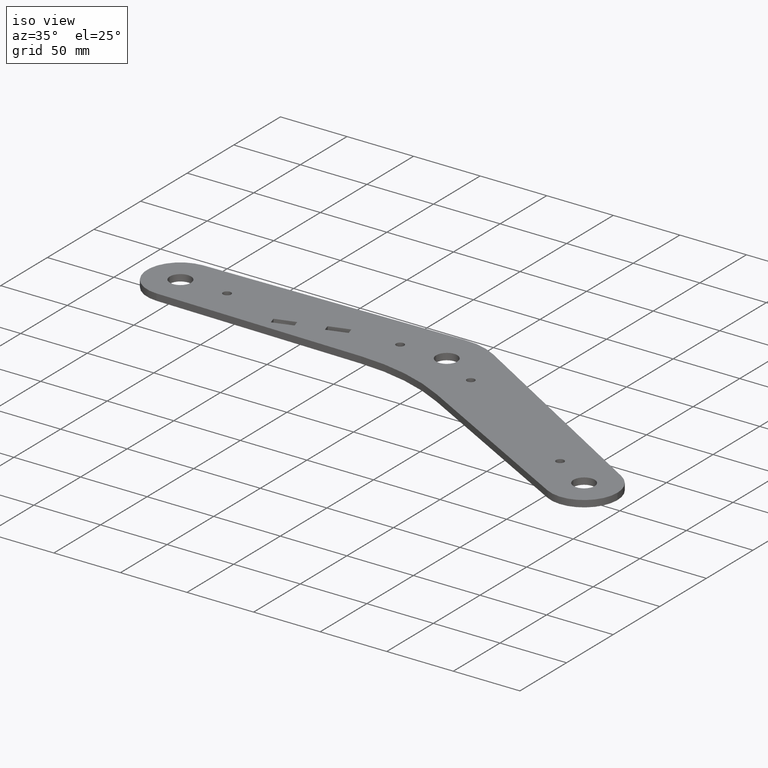
[diagram: clean part render]
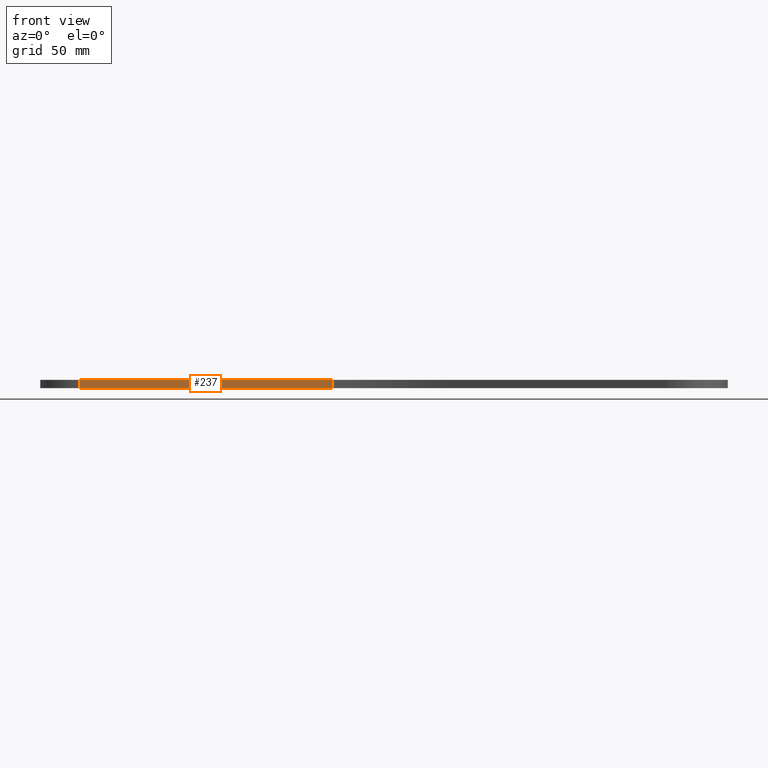
[diagram: tour spotlight — one face highlighted and labeled with its STEP entity id]
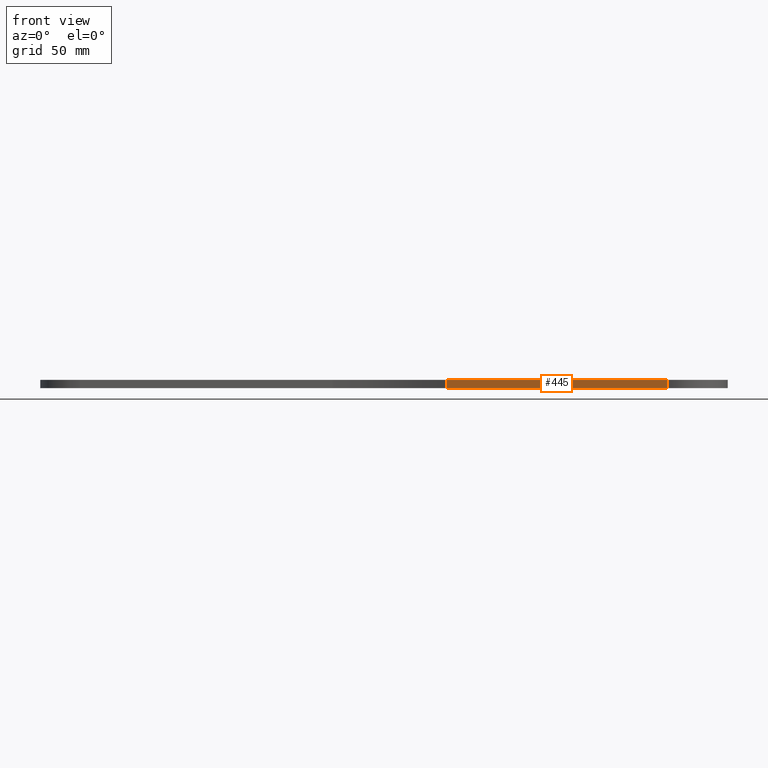
[diagram: tour spotlight — one face highlighted and labeled with its STEP entity id]
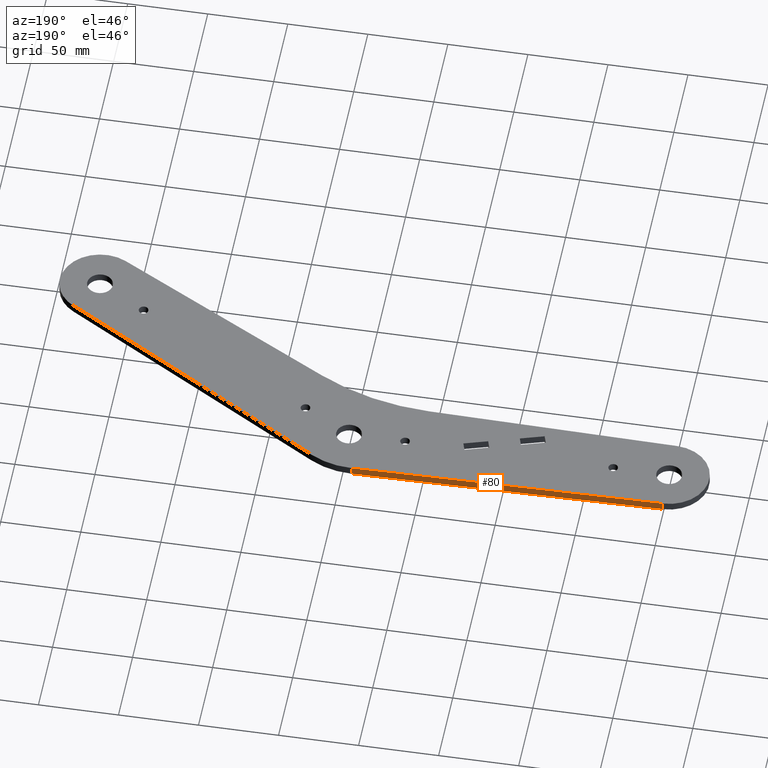
[diagram: tour spotlight — one face highlighted and labeled with its STEP entity id]
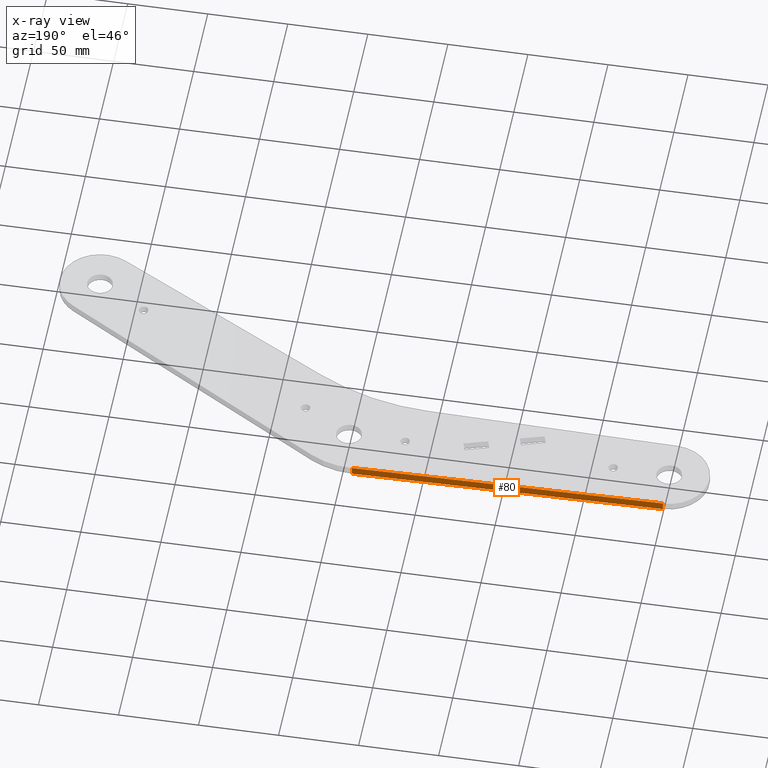
[diagram: x-ray of the same camera — body ghosted, this tour face saturated]
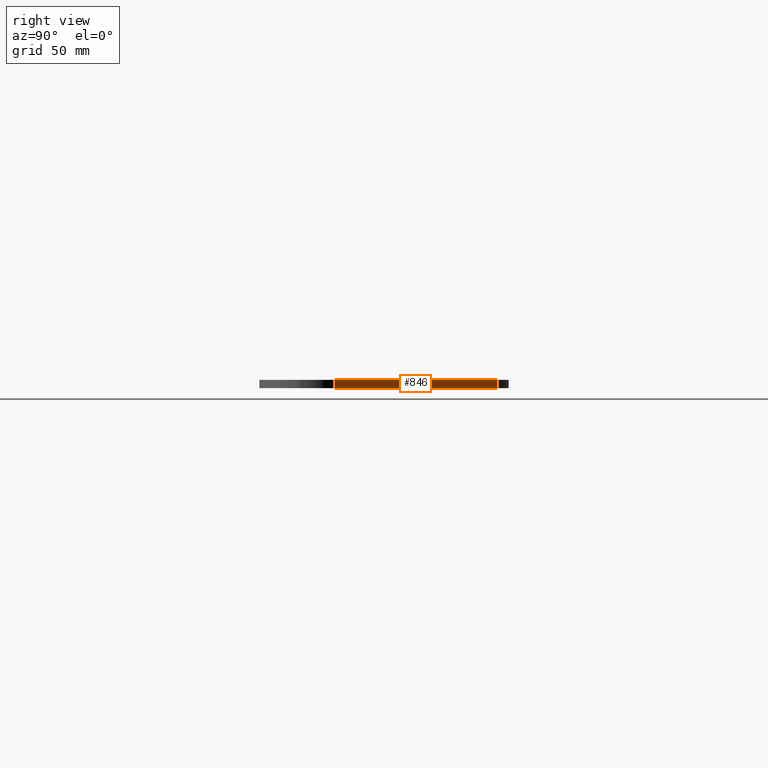
[diagram: tour spotlight — one face highlighted and labeled with its STEP entity id]
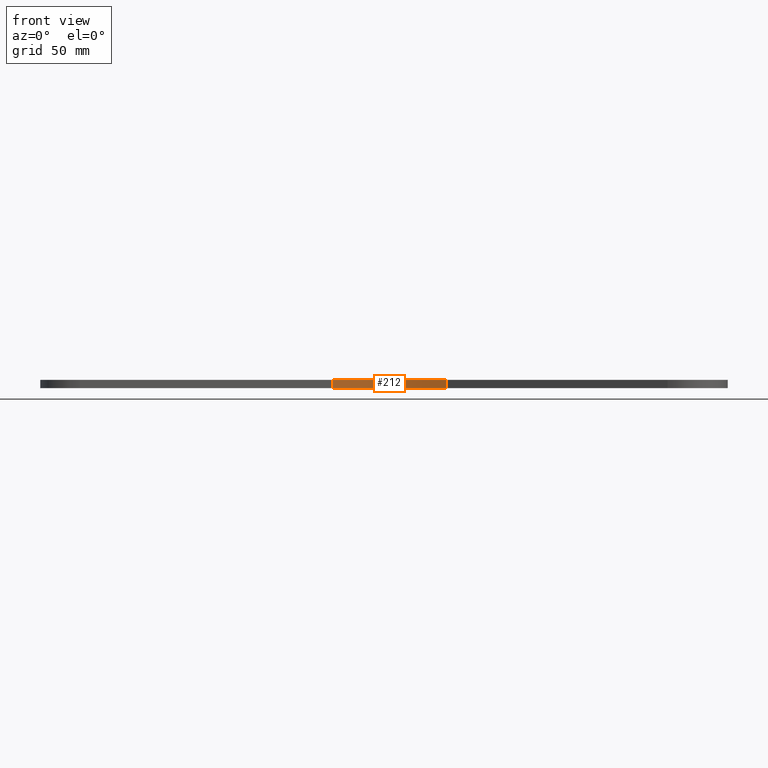
[diagram: tour spotlight — one face highlighted and labeled with its STEP entity id]
A machine part: a face-by-face anatomy tour. The part has 33 B-rep faces; the first image is the clean iso view, then the 5 largest visible faces are spotlighted one at a time (largest first), each with its STEP entity span.

Face 1 — front view, entity #237. In plain terms, the highlighted planar face has unit normal (-0.0175, -0.9998, 0).
Definition (entity closure, byte-faithful):
#4 = CARTESIAN_POINT ( 'NONE',  ( -200.4363101609320950, -24.99619237890977530, -5.000000000000000000 ) ) ;
#21 = VERTEX_POINT ( 'NONE', #950 ) ;
#120 = DIRECTION ( 'NONE',  ( 0.9998476951563911586, -0.01745240643728373023, 0.000000000000000000 ) ) ;
#142 = VERTEX_POINT ( 'NONE', #529 ) ;
#143 = CARTESIAN_POINT ( 'NONE',  ( -200.4363101609320950, -24.99619237890977530, 0.000000000000000000 ) ) ;
#237 = ADVANCED_FACE ( 'NONE', ( #1199 ), #285, .T. ) ;
#285 = PLANE ( 'NONE',  #1106 ) ;
#314 = LINE ( 'NONE', #957, #918 ) ;
#328 = EDGE_CURVE ( 'NONE', #21, #1034, #314, .T. ) ;
#336 = CARTESIAN_POINT ( 'NONE',  ( -200.4363101609320950, -24.99619237890977530, 0.000000000000000000 ) ) ;
#439 = EDGE_CURVE ( 'NONE', #479, #142, #1054, .T. ) ;
#469 = CARTESIAN_POINT ( 'NONE',  ( -200.4363101609320950, -24.99619237890977530, -5.000000000000000000 ) ) ;
#479 = VERTEX_POINT ( 'NONE', #336 ) ;
#498 = VECTOR ( 'NONE', #663, 1000.000000000000000 ) ;
#529 = CARTESIAN_POINT ( 'NONE',  ( -44.99312471194955521, -27.70946327357076555, 0.000000000000000000 ) ) ;
#549 = VECTOR ( 'NONE', #604, 1000.000000000000114 ) ;
#588 = EDGE_CURVE ( 'NONE', #1034, #142, #727, .T. ) ;
#604 = DIRECTION ( 'NONE',  ( 0.9998476951563911586, -0.01745240643728373023, 0.000000000000000000 ) ) ;
#617 = CARTESIAN_POINT ( 'NONE',  ( -44.99312471194955521, -27.70946327357076555, -5.000000000000000000 ) ) ;
#662 = DIRECTION ( 'NONE',  ( 0.9998476951563911586, -0.01745240643728373023, 0.000000000000000000 ) ) ;
#663 = DIRECTION ( 'NONE',  ( 0.000000000000000000, 0.000000000000000000, 1.000000000000000000 ) ) ;
#672 = ORIENTED_EDGE ( 'NONE', *, *, #439, .F. ) ;
#677 = VECTOR ( 'NONE', #1087, 1000.000000000000000 ) ;
#719 = EDGE_CURVE ( 'NONE', #21, #479, #936, .T. ) ;
#727 = LINE ( 'NONE', #1075, #677 ) ;
#755 = ORIENTED_EDGE ( 'NONE', *, *, #588, .T. ) ;
#852 = ORIENTED_EDGE ( 'NONE', *, *, #719, .F. ) ;
#918 = VECTOR ( 'NONE', #120, 1000.000000000000114 ) ;
#919 = DIRECTION ( 'NONE',  ( -0.01745240643728373370, -0.9998476951563912696, 0.000000000000000000 ) ) ;
#936 = LINE ( 'NONE', #4, #498 ) ;
#950 = CARTESIAN_POINT ( 'NONE',  ( -200.4363101609320950, -24.99619237890977530, -5.000000000000000000 ) ) ;
#957 = CARTESIAN_POINT ( 'NONE',  ( -200.4363101609320950, -24.99619237890977530, -5.000000000000000000 ) ) ;
#1034 = VERTEX_POINT ( 'NONE', #617 ) ;
#1045 = ORIENTED_EDGE ( 'NONE', *, *, #328, .T. ) ;
#1054 = LINE ( 'NONE', #143, #549 ) ;
#1075 = CARTESIAN_POINT ( 'NONE',  ( -44.99312471194955521, -27.70946327357076555, -5.000000000000000000 ) ) ;
#1087 = DIRECTION ( 'NONE',  ( 0.000000000000000000, 0.000000000000000000, 1.000000000000000000 ) ) ;
#1106 = AXIS2_PLACEMENT_3D ( 'NONE', #469, #919, #662 ) ;
#1145 = EDGE_LOOP ( 'NONE', ( #672, #852, #1045, #755 ) ) ;
#1199 = FACE_OUTER_BOUND ( 'NONE', #1145, .T. ) ;

Face 2 — front view, entity #445. In plain terms, the highlighted planar face has unit normal (-0.4848, -0.8746, 0).
Definition (entity closure, byte-faithful):
#65 = DIRECTION ( 'NONE',  ( 0.8746197071393919664, -0.4848096202463438309, -0.000000000000000000 ) ) ;
#133 = CARTESIAN_POINT ( 'NONE',  ( 25.11045735940951218, -46.49366147612066413, -5.000000000000000000 ) ) ;
#136 = PLANE ( 'NONE',  #865 ) ;
#165 = VECTOR ( 'NONE', #246, 1000.000000000000000 ) ;
#223 = ORIENTED_EDGE ( 'NONE', *, *, #641, .F. ) ;
#236 = CARTESIAN_POINT ( 'NONE',  ( 161.0848402507290302, -121.8654926784849835, -5.000000000000000000 ) ) ;
#246 = DIRECTION ( 'NONE',  ( 0.000000000000000000, 0.000000000000000000, 1.000000000000000000 ) ) ;
#258 = ORIENTED_EDGE ( 'NONE', *, *, #1019, .F. ) ;
#323 = DIRECTION ( 'NONE',  ( 0.8746197071393919664, -0.4848096202463438309, 0.000000000000000000 ) ) ;
#353 = VERTEX_POINT ( 'NONE', #674 ) ;
#386 = ORIENTED_EDGE ( 'NONE', *, *, #1026, .T. ) ;
#400 = VECTOR ( 'NONE', #527, 1000.000000000000227 ) ;
#413 = CARTESIAN_POINT ( 'NONE',  ( 161.0848402507290302, -121.8654926784849835, -5.000000000000000000 ) ) ;
#444 = CARTESIAN_POINT ( 'NONE',  ( 25.11045735940951218, -46.49366147612066413, -5.000000000000000000 ) ) ;
#445 = ADVANCED_FACE ( 'NONE', ( #966 ), #136, .T. ) ;
#527 = DIRECTION ( 'NONE',  ( 0.8746197071393919664, -0.4848096202463438309, -0.000000000000000000 ) ) ;
#534 = LINE ( 'NONE', #236, #400 ) ;
#540 = CARTESIAN_POINT ( 'NONE',  ( 161.0848402507290302, -121.8654926784849835, 0.000000000000000000 ) ) ;
#579 = VERTEX_POINT ( 'NONE', #1167 ) ;
#641 = EDGE_CURVE ( 'NONE', #921, #353, #1082, .T. ) ;
#674 = CARTESIAN_POINT ( 'NONE',  ( 25.11045735940951218, -46.49366147612066413, 0.000000000000000000 ) ) ;
#789 = DIRECTION ( 'NONE',  ( 0.000000000000000000, 0.000000000000000000, 1.000000000000000000 ) ) ;
#862 = LINE ( 'NONE', #413, #1057 ) ;
#865 = AXIS2_PLACEMENT_3D ( 'NONE', #1160, #962, #323 ) ;
#921 = VERTEX_POINT ( 'NONE', #133 ) ;
#928 = EDGE_CURVE ( 'NONE', #579, #1084, #862, .T. ) ;
#962 = DIRECTION ( 'NONE',  ( -0.4848096202463438864, -0.8746197071393920774, 0.000000000000000000 ) ) ;
#966 = FACE_OUTER_BOUND ( 'NONE', #1077, .T. ) ;
#985 = CARTESIAN_POINT ( 'NONE',  ( 161.0848402507290302, -121.8654926784849835, 0.000000000000000000 ) ) ;
#990 = LINE ( 'NONE', #985, #1192 ) ;
#1019 = EDGE_CURVE ( 'NONE', #353, #1084, #990, .T. ) ;
#1026 = EDGE_CURVE ( 'NONE', #921, #579, #534, .T. ) ;
#1057 = VECTOR ( 'NONE', #789, 1000.000000000000000 ) ;
#1077 = EDGE_LOOP ( 'NONE', ( #258, #223, #386, #1202 ) ) ;
#1082 = LINE ( 'NONE', #444, #165 ) ;
#1084 = VERTEX_POINT ( 'NONE', #540 ) ;
#1160 = CARTESIAN_POINT ( 'NONE',  ( 161.0848402507290302, -121.8654926784849835, -5.000000000000000000 ) ) ;
#1167 = CARTESIAN_POINT ( 'NONE',  ( 161.0848402507290302, -121.8654926784849835, -5.000000000000000000 ) ) ;
#1192 = VECTOR ( 'NONE', #65, 1000.000000000000227 ) ;
#1202 = ORIENTED_EDGE ( 'NONE', *, *, #928, .T. ) ;

Face 3 — auxiliary view, entity #80. An x-ray twin of the same camera follows (body ghosted, this face saturated) — the face is partly hidden behind the body. In plain terms, the highlighted planar face has unit normal (-0.0175, 0.9998, 0).
Definition (entity closure, byte-faithful):
#49 = EDGE_CURVE ( 'NONE', #222, #999, #1064, .T. ) ;
#80 = ADVANCED_FACE ( 'NONE', ( #1155 ), #325, .T. ) ;
#84 = CARTESIAN_POINT ( 'NONE',  ( -200.4363101609320950, 24.99619237890977530, 0.000000000000000000 ) ) ;
#87 = VECTOR ( 'NONE', #1107, 1000.000000000000000 ) ;
#89 = LINE ( 'NONE', #84, #1168 ) ;
#193 = EDGE_CURVE ( 'NONE', #940, #999, #89, .T. ) ;
#222 = VERTEX_POINT ( 'NONE', #1102 ) ;
#252 = DIRECTION ( 'NONE',  ( -0.9998476951563911586, -0.01745240643728353941, 0.000000000000000000 ) ) ;
#260 = DIRECTION ( 'NONE',  ( -0.9998476951563911586, -0.01745240643728353941, -0.000000000000000000 ) ) ;
#296 = AXIS2_PLACEMENT_3D ( 'NONE', #813, #796, #252 ) ;
#325 = PLANE ( 'NONE',  #296 ) ;
#370 = ORIENTED_EDGE ( 'NONE', *, *, #1191, .F. ) ;
#441 = VERTEX_POINT ( 'NONE', #794 ) ;
#466 = ORIENTED_EDGE ( 'NONE', *, *, #49, .T. ) ;
#512 = CARTESIAN_POINT ( 'NONE',  ( -200.4363101609320950, 24.99619237890977530, -5.000000000000000000 ) ) ;
#513 = ORIENTED_EDGE ( 'NONE', *, *, #193, .F. ) ;
#548 = VECTOR ( 'NONE', #1074, 1000.000000000000000 ) ;
#565 = LINE ( 'NONE', #752, #87 ) ;
#603 = EDGE_CURVE ( 'NONE', #441, #222, #824, .T. ) ;
#620 = ORIENTED_EDGE ( 'NONE', *, *, #603, .T. ) ;
#732 = DIRECTION ( 'NONE',  ( -0.9998476951563911586, -0.01745240643728353941, -0.000000000000000000 ) ) ;
#752 = CARTESIAN_POINT ( 'NONE',  ( -6.664043320742175425, 28.37849987789320139, -5.000000000000000000 ) ) ;
#794 = CARTESIAN_POINT ( 'NONE',  ( -6.664043320742175425, 28.37849987789320139, -5.000000000000000000 ) ) ;
#796 = DIRECTION ( 'NONE',  ( -0.01745240643728354288, 0.9998476951563912696, 0.000000000000000000 ) ) ;
#813 = CARTESIAN_POINT ( 'NONE',  ( -200.4363101609320950, 24.99619237890977530, -5.000000000000000000 ) ) ;
#815 = EDGE_LOOP ( 'NONE', ( #513, #370, #620, #466 ) ) ;
#818 = CARTESIAN_POINT ( 'NONE',  ( -200.4363101609320950, 24.99619237890977530, -5.000000000000000000 ) ) ;
#824 = LINE ( 'NONE', #818, #1173 ) ;
#940 = VERTEX_POINT ( 'NONE', #1043 ) ;
#999 = VERTEX_POINT ( 'NONE', #1073 ) ;
#1043 = CARTESIAN_POINT ( 'NONE',  ( -6.664043320742175425, 28.37849987789320139, 0.000000000000000000 ) ) ;
#1064 = LINE ( 'NONE', #512, #548 ) ;
#1073 = CARTESIAN_POINT ( 'NONE',  ( -200.4363101609320950, 24.99619237890977530, 0.000000000000000000 ) ) ;
#1074 = DIRECTION ( 'NONE',  ( 0.000000000000000000, 0.000000000000000000, 1.000000000000000000 ) ) ;
#1102 = CARTESIAN_POINT ( 'NONE',  ( -200.4363101609320950, 24.99619237890977530, -5.000000000000000000 ) ) ;
#1107 = DIRECTION ( 'NONE',  ( 0.000000000000000000, 0.000000000000000000, 1.000000000000000000 ) ) ;
#1155 = FACE_OUTER_BOUND ( 'NONE', #815, .T. ) ;
#1168 = VECTOR ( 'NONE', #260, 1000.000000000000114 ) ;
#1173 = VECTOR ( 'NONE', #732, 1000.000000000000114 ) ;
#1191 = EDGE_CURVE ( 'NONE', #441, #940, #565, .T. ) ;

Face 4 — right view, entity #846. In plain terms, the highlighted planar face has unit normal (0.515, 0.8572, -0).
Definition (entity closure, byte-faithful):
#10 = LINE ( 'NONE', #873, #956 ) ;
#39 = VERTEX_POINT ( 'NONE', #798 ) ;
#43 = LINE ( 'NONE', #1081, #969 ) ;
#79 = DIRECTION ( 'NONE',  ( 0.000000000000000000, 0.000000000000000000, 1.000000000000000000 ) ) ;
#86 = VECTOR ( 'NONE', #79, 1000.000000000000000 ) ;
#90 = FACE_OUTER_BOUND ( 'NONE', #1131, .T. ) ;
#139 = EDGE_CURVE ( 'NONE', #1137, #1151, #43, .T. ) ;
#203 = DIRECTION ( 'NONE',  ( 0.5150380749100493816, 0.8571673007021152202, -0.000000000000000000 ) ) ;
#264 = ORIENTED_EDGE ( 'NONE', *, *, #288, .T. ) ;
#288 = EDGE_CURVE ( 'NONE', #39, #777, #10, .T. ) ;
#355 = CARTESIAN_POINT ( 'NONE',  ( 19.96048074662445160, 21.24448015517938160, -5.000000000000000000 ) ) ;
#453 = DIRECTION ( 'NONE',  ( 0.000000000000000000, 0.000000000000000000, 1.000000000000000000 ) ) ;
#456 = AXIS2_PLACEMENT_3D ( 'NONE', #1030, #203, #884 ) ;
#482 = VECTOR ( 'NONE', #453, 1000.000000000000000 ) ;
#484 = DIRECTION ( 'NONE',  ( -0.8571673007021152202, 0.5150380749100493816, 0.000000000000000000 ) ) ;
#542 = LINE ( 'NONE', #915, #86 ) ;
#562 = CARTESIAN_POINT ( 'NONE',  ( 19.96048074662445160, 21.24448015517938160, -5.000000000000000000 ) ) ;
#600 = ORIENTED_EDGE ( 'NONE', *, *, #139, .F. ) ;
#666 = EDGE_CURVE ( 'NONE', #39, #1137, #542, .T. ) ;
#669 = PLANE ( 'NONE',  #456 ) ;
#777 = VERTEX_POINT ( 'NONE', #562 ) ;
#798 = CARTESIAN_POINT ( 'NONE',  ( 186.0810326296388553, -78.57081748244732466, -5.000000000000000000 ) ) ;
#828 = LINE ( 'NONE', #355, #482 ) ;
#846 = ADVANCED_FACE ( 'NONE', ( #90 ), #669, .T. ) ;
#873 = CARTESIAN_POINT ( 'NONE',  ( 186.0810326296388553, -78.57081748244732466, -5.000000000000000000 ) ) ;
#884 = DIRECTION ( 'NONE',  ( -0.8571673007021152202, 0.5150380749100493816, 0.000000000000000000 ) ) ;
#915 = CARTESIAN_POINT ( 'NONE',  ( 186.0810326296388553, -78.57081748244732466, -5.000000000000000000 ) ) ;
#939 = ORIENTED_EDGE ( 'NONE', *, *, #666, .F. ) ;
#956 = VECTOR ( 'NONE', #484, 1000.000000000000114 ) ;
#969 = VECTOR ( 'NONE', #986, 1000.000000000000114 ) ;
#986 = DIRECTION ( 'NONE',  ( -0.8571673007021152202, 0.5150380749100493816, 0.000000000000000000 ) ) ;
#1015 = CARTESIAN_POINT ( 'NONE',  ( 19.96048074662445160, 21.24448015517938160, 0.000000000000000000 ) ) ;
#1030 = CARTESIAN_POINT ( 'NONE',  ( 186.0810326296388553, -78.57081748244732466, -5.000000000000000000 ) ) ;
#1068 = CARTESIAN_POINT ( 'NONE',  ( 186.0810326296388553, -78.57081748244732466, 0.000000000000000000 ) ) ;
#1081 = CARTESIAN_POINT ( 'NONE',  ( 186.0810326296388553, -78.57081748244732466, 0.000000000000000000 ) ) ;
#1131 = EDGE_LOOP ( 'NONE', ( #600, #939, #264, #1163 ) ) ;
#1137 = VERTEX_POINT ( 'NONE', #1068 ) ;
#1151 = VERTEX_POINT ( 'NONE', #1015 ) ;
#1157 = EDGE_CURVE ( 'NONE', #777, #1151, #828, .T. ) ;
#1163 = ORIENTED_EDGE ( 'NONE', *, *, #1157, .T. ) ;

Face 5 — front view, entity #212. In plain terms, the highlighted cylindrical surface (partial cylindrical patch) has radius 150 mm, axis along (0, 0, 1).
Definition (entity closure, byte-faithful):
#74 = CYLINDRICAL_SURFACE ( 'NONE', #199, 150.0000000000000000 ) ;
#123 = EDGE_CURVE ( 'NONE', #142, #353, #843, .T. ) ;
#133 = CARTESIAN_POINT ( 'NONE',  ( 25.11045735940951218, -46.49366147612066413, -5.000000000000000000 ) ) ;
#142 = VERTEX_POINT ( 'NONE', #529 ) ;
#165 = VECTOR ( 'NONE', #246, 1000.000000000000000 ) ;
#199 = AXIS2_PLACEMENT_3D ( 'NONE', #277, #740, #362 ) ;
#212 = ADVANCED_FACE ( 'NONE', ( #1093 ), #74, .F. ) ;
#246 = DIRECTION ( 'NONE',  ( 0.000000000000000000, 0.000000000000000000, 1.000000000000000000 ) ) ;
#277 = CARTESIAN_POINT ( 'NONE',  ( -47.61098567754208233, -177.6866175470294422, -5.000000000000000000 ) ) ;
#297 = CIRCLE ( 'NONE', #608, 150.0000000000000000 ) ;
#339 = DIRECTION ( 'NONE',  ( -0.000000000000000000, -0.000000000000000000, -1.000000000000000000 ) ) ;
#353 = VERTEX_POINT ( 'NONE', #674 ) ;
#362 = DIRECTION ( 'NONE',  ( 1.000000000000000000, 0.000000000000000000, 0.000000000000000000 ) ) ;
#417 = DIRECTION ( 'NONE',  ( -1.000000000000000000, 0.000000000000000000, 0.000000000000000000 ) ) ;
#420 = EDGE_CURVE ( 'NONE', #1034, #921, #297, .T. ) ;
#423 = CARTESIAN_POINT ( 'NONE',  ( -47.61098567754208233, -177.6866175470294422, -5.000000000000000000 ) ) ;
#444 = CARTESIAN_POINT ( 'NONE',  ( 25.11045735940951218, -46.49366147612066413, -5.000000000000000000 ) ) ;
#451 = EDGE_LOOP ( 'NONE', ( #685, #568, #898, #1006 ) ) ;
#529 = CARTESIAN_POINT ( 'NONE',  ( -44.99312471194955521, -27.70946327357076555, 0.000000000000000000 ) ) ;
#568 = ORIENTED_EDGE ( 'NONE', *, *, #588, .F. ) ;
#588 = EDGE_CURVE ( 'NONE', #1034, #142, #727, .T. ) ;
#608 = AXIS2_PLACEMENT_3D ( 'NONE', #423, #1153, #417 ) ;
#617 = CARTESIAN_POINT ( 'NONE',  ( -44.99312471194955521, -27.70946327357076555, -5.000000000000000000 ) ) ;
#641 = EDGE_CURVE ( 'NONE', #921, #353, #1082, .T. ) ;
#674 = CARTESIAN_POINT ( 'NONE',  ( 25.11045735940951218, -46.49366147612066413, 0.000000000000000000 ) ) ;
#677 = VECTOR ( 'NONE', #1087, 1000.000000000000000 ) ;
#685 = ORIENTED_EDGE ( 'NONE', *, *, #123, .F. ) ;
#720 = DIRECTION ( 'NONE',  ( -1.000000000000000000, 0.000000000000000000, 0.000000000000000000 ) ) ;
#727 = LINE ( 'NONE', #1075, #677 ) ;
#740 = DIRECTION ( 'NONE',  ( 0.000000000000000000, 0.000000000000000000, 1.000000000000000000 ) ) ;
#805 = CARTESIAN_POINT ( 'NONE',  ( -47.61098567754208233, -177.6866175470294422, 0.000000000000000000 ) ) ;
#843 = CIRCLE ( 'NONE', #917, 150.0000000000000000 ) ;
#898 = ORIENTED_EDGE ( 'NONE', *, *, #420, .T. ) ;
#917 = AXIS2_PLACEMENT_3D ( 'NONE', #805, #339, #720 ) ;
#921 = VERTEX_POINT ( 'NONE', #133 ) ;
#1006 = ORIENTED_EDGE ( 'NONE', *, *, #641, .T. ) ;
#1034 = VERTEX_POINT ( 'NONE', #617 ) ;
#1075 = CARTESIAN_POINT ( 'NONE',  ( -44.99312471194955521, -27.70946327357076555, -5.000000000000000000 ) ) ;
#1082 = LINE ( 'NONE', #444, #165 ) ;
#1087 = DIRECTION ( 'NONE',  ( 0.000000000000000000, 0.000000000000000000, 1.000000000000000000 ) ) ;
#1093 = FACE_OUTER_BOUND ( 'NONE', #451, .T. ) ;
#1153 = DIRECTION ( 'NONE',  ( -0.000000000000000000, -0.000000000000000000, -1.000000000000000000 ) ) ;